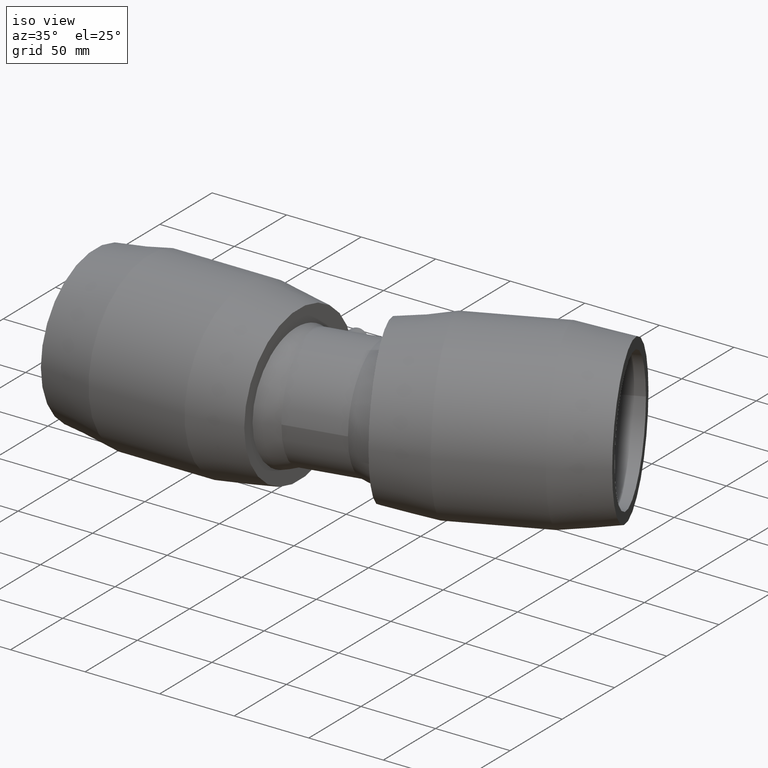
[diagram: clean part render]
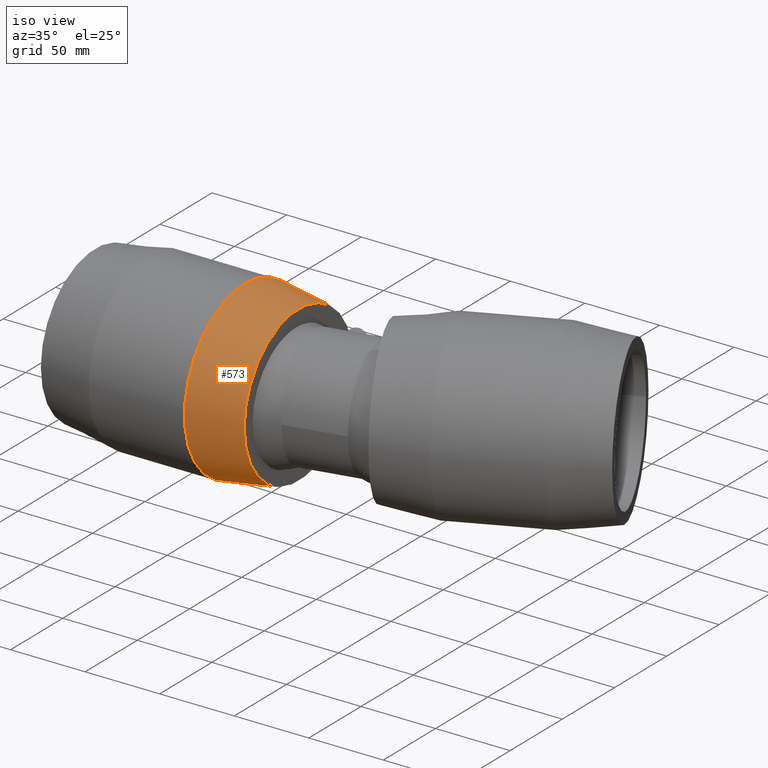
[diagram: same view with one face highlighted and labeled with its STEP entity id]
A machine part, iso view. The second image highlights one B-rep face of the part: STEP entity #573.
In plain terms, the highlighted conical surface has half-angle 9.152 deg.
Its self-contained STEP definition (entity closure, byte-faithful):
#17=CONICAL_SURFACE('',#648,55.1,9.15233904940199);
#80=FACE_BOUND('',#205,.T.);
#81=FACE_BOUND('',#206,.T.);
#135=FACE_OUTER_BOUND('',#204,.T.);
#204=EDGE_LOOP('',(#477));
#205=EDGE_LOOP('',(#478));
#206=EDGE_LOOP('',(#479));
#277=B_SPLINE_CURVE_WITH_KNOTS('',3,(#1157,#1158,#1159,#1160,#1161,#1162,
#1163,#1164,#1165,#1166,#1167,#1168,#1169,#1170,#1171,#1172,#1173,#1174,
#1175,#1176,#1177,#1178,#1179,#1180,#1181,#1182,#1183,#1184,#1185,#1186,
#1187,#1188,#1189,#1190),.UNSPECIFIED.,.T.,.F.,(4,2,2,2,2,2,2,2,2,2,2,2,
2,2,2,2,4),(0.,0.374990088919225,0.749980177838451,1.11609909215705,1.48221800647564,
1.84833692079424,2.21445583511283,2.58944592403206,2.96443601295128,3.31666423655562,
3.66889246015995,4.02184967276137,4.37480688536279,4.7277640979642,5.08072131056562,
5.43294953416995,5.78517775777429),.UNSPECIFIED.);
#298=CIRCLE('',#646,58.);
#300=CIRCLE('',#649,52.2);
#347=VERTEX_POINT('',#1156);
#349=VERTEX_POINT('',#1229);
#351=VERTEX_POINT('',#1234);
#402=EDGE_CURVE('',#347,#347,#277,.T.);
#404=EDGE_CURVE('',#349,#349,#298,.T.);
#406=EDGE_CURVE('',#351,#351,#300,.T.);
#477=ORIENTED_EDGE('',*,*,#406,.F.);
#478=ORIENTED_EDGE('',*,*,#402,.T.);
#479=ORIENTED_EDGE('',*,*,#404,.T.);
#573=ADVANCED_FACE('',(#135,#80,#81),#17,.T.);
#646=AXIS2_PLACEMENT_3D('',#1230,#787,#788);
#648=AXIS2_PLACEMENT_3D('',#1233,#791,#792);
#649=AXIS2_PLACEMENT_3D('',#1235,#793,#794);
#787=DIRECTION('center_axis',(1.,1.83697019872103E-16,0.));
#788=DIRECTION('ref_axis',(0.,0.,-1.));
#791=DIRECTION('center_axis',(-1.,-1.83697019872103E-16,0.));
#792=DIRECTION('ref_axis',(-2.02894640216501E-16,1.,0.));
#793=DIRECTION('center_axis',(1.,1.83697019872103E-16,0.));
#794=DIRECTION('ref_axis',(0.,0.,-1.));
#1156=CARTESIAN_POINT('',(54.9629770549691,53.4869952867012,9.54862179279033));
#1157=CARTESIAN_POINT('Ctrl Pts',(54.9629770549693,53.4869952867012,9.54862179279033));
#1158=CARTESIAN_POINT('Ctrl Pts',(53.7289235223367,53.6827205807601,9.58356312382291));
#1159=CARTESIAN_POINT('Ctrl Pts',(52.4173799209787,53.9385019798939,9.36352289397664));
#1160=CARTESIAN_POINT('Ctrl Pts',(50.0076291370687,54.4891463267129,8.40402339335127));
#1161=CARTESIAN_POINT('Ctrl Pts',(48.9087328003708,54.7815292013589,7.66487337951115));
#1162=CARTESIAN_POINT('Ctrl Pts',(47.1908024830213,55.2713100644481,5.95855418812734));
#1163=CARTESIAN_POINT('Ctrl Pts',(46.4492136358688,55.5025109305279,4.88479605742722));
#1164=CARTESIAN_POINT('Ctrl Pts',(45.4607482748411,55.8195972247125,2.51594984170668));
#1165=CARTESIAN_POINT('Ctrl Pts',(45.2142740493585,55.9032558476034,1.22039638106198));
#1166=CARTESIAN_POINT('Ctrl Pts',(45.2142740493585,55.9032558476034,-1.22039638106198));
#1167=CARTESIAN_POINT('Ctrl Pts',(45.4607482748411,55.8195972247125,-2.51594984170668));
#1168=CARTESIAN_POINT('Ctrl Pts',(46.4492136358688,55.5025109305279,-4.88479605742722));
#1169=CARTESIAN_POINT('Ctrl Pts',(47.1908024830213,55.2713100644481,-5.95855418812734));
#1170=CARTESIAN_POINT('Ctrl Pts',(48.9087328003708,54.7815292013589,-7.66487337951115));
#1171=CARTESIAN_POINT('Ctrl Pts',(50.0076291370687,54.4891463267129,-8.40402339335127));
#1172=CARTESIAN_POINT('Ctrl Pts',(52.4173799209787,53.9385019798939,-9.36352289397664));
#1173=CARTESIAN_POINT('Ctrl Pts',(53.7289235223367,53.6827205807601,-9.58356312382291));
#1174=CARTESIAN_POINT('Ctrl Pts',(56.1221236470421,53.3031505007244,-9.51580139746881));
#1175=CARTESIAN_POINT('Ctrl Pts',(57.3597601320536,53.1492389392509,-9.25257514912441));
#1176=CARTESIAN_POINT('Ctrl Pts',(59.6339121788256,52.9434146554307,-8.24923013019714));
#1177=CARTESIAN_POINT('Ctrl Pts',(60.670162065391,52.8892719276819,-7.508967908957));
#1178=CARTESIAN_POINT('Ctrl Pts',(62.302962706042,52.8372154172209,-5.81880290609336));
#1179=CARTESIAN_POINT('Ctrl Pts',(63.0092137922849,52.83542367789,-4.75475420289583));
#1180=CARTESIAN_POINT('Ctrl Pts',(63.9441806347299,52.8423300516058,-2.43360579525662));
#1181=CARTESIAN_POINT('Ctrl Pts',(64.1729560774903,52.8488015208488,-1.17652404200472));
#1182=CARTESIAN_POINT('Ctrl Pts',(64.1729560774903,52.8488015208488,1.17652404200472));
#1183=CARTESIAN_POINT('Ctrl Pts',(63.9441806347299,52.8423300516058,2.43360579525662));
#1184=CARTESIAN_POINT('Ctrl Pts',(63.0092137922849,52.83542367789,4.75475420289583));
#1185=CARTESIAN_POINT('Ctrl Pts',(62.302962706042,52.8372154172209,5.81880290609336));
#1186=CARTESIAN_POINT('Ctrl Pts',(60.670162065391,52.8892719276819,7.508967908957));
#1187=CARTESIAN_POINT('Ctrl Pts',(59.6339121788256,52.9434146554307,8.24923013019713));
#1188=CARTESIAN_POINT('Ctrl Pts',(57.3597601320536,53.1492389392509,9.25257514912441));
#1189=CARTESIAN_POINT('Ctrl Pts',(56.1221236470421,53.3031505007244,9.51580139746882));
#1190=CARTESIAN_POINT('Ctrl Pts',(54.9629770549693,53.4869952867012,9.54862179279033));
#1229=CARTESIAN_POINT('',(32.2,58.,0.));
#1230=CARTESIAN_POINT('Origin',(32.2,1.84431807951591E-14,0.));
#1233=CARTESIAN_POINT('Origin',(50.2,2.1749727152857E-14,0.));
#1234=CARTESIAN_POINT('',(68.2,52.2,0.));
#1235=CARTESIAN_POINT('Origin',(68.2,2.50562735105549E-14,0.));